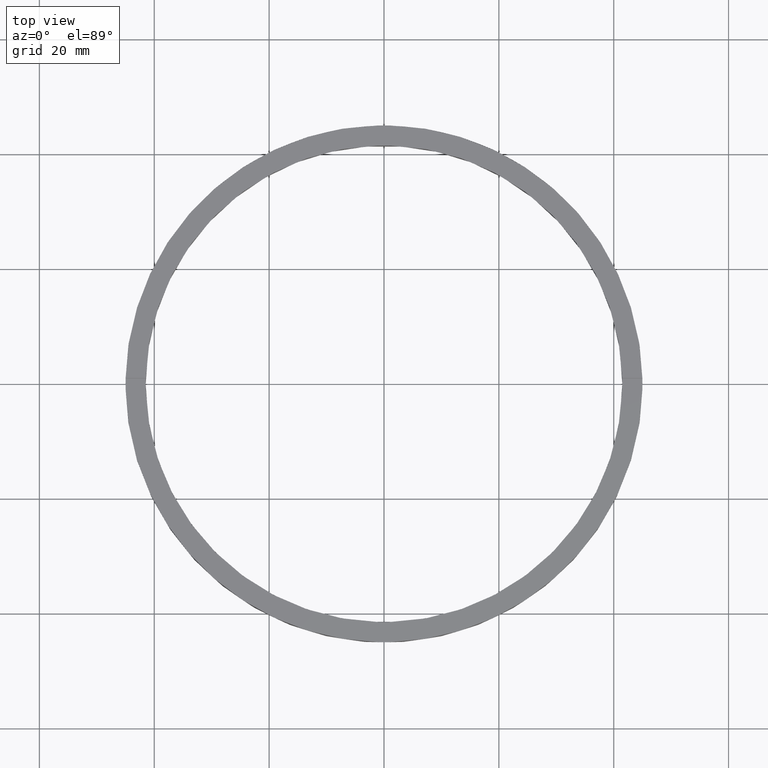
[diagram: clean part render]
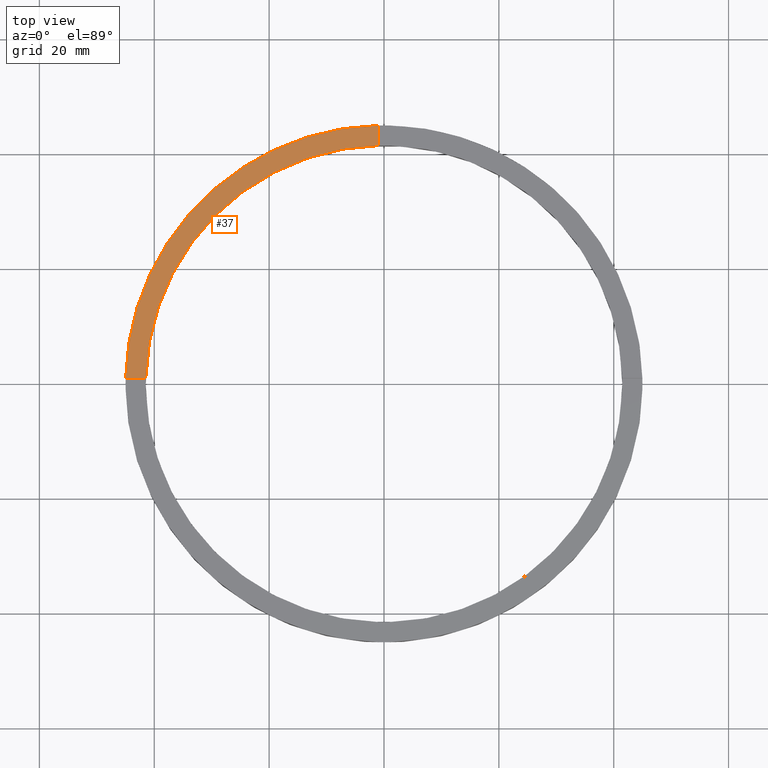
[diagram: same view with one face highlighted and labeled with its STEP entity id]
A machine part, top view. The second image highlights one B-rep face of the part: STEP entity #37.
In plain terms, the highlighted planar face has unit normal (0, 0, 1).
Its self-contained STEP definition (entity closure, byte-faithful):
#4 = VECTOR ( 'NONE', #169, 1000.000000000000000 ) ;
#21 = CARTESIAN_POINT ( 'NONE',  ( 0.000000000000000000, 0.000000000000000000, 4.500000000000000000 ) ) ;
#31 = AXIS2_PLACEMENT_3D ( 'NONE', #399, #744, #630 ) ;
#37 = ADVANCED_FACE ( 'NONE', ( #113 ), #605, .T. ) ;
#47 = CARTESIAN_POINT ( 'NONE',  ( -44.98888751680797071, 0.9999999999999703570, 4.500000000000000000 ) ) ;
#70 = DIRECTION ( 'NONE',  ( 0.000000000000000000, 0.000000000000000000, 1.000000000000000000 ) ) ;
#88 = AXIS2_PLACEMENT_3D ( 'NONE', #21, #70, #571 ) ;
#112 = LINE ( 'NONE', #468, #646 ) ;
#113 = FACE_OUTER_BOUND ( 'NONE', #731, .T. ) ;
#144 = CARTESIAN_POINT ( 'NONE',  ( -1.000000000000026201, 41.48795005781799716, 4.500000000000000000 ) ) ;
#155 = DIRECTION ( 'NONE',  ( -0.000000000000000000, -1.000000000000000000, -0.000000000000000000 ) ) ;
#164 = CARTESIAN_POINT ( 'NONE',  ( -41.48795005781799716, 0.9999999999999709122, 4.500000000000000000 ) ) ;
#169 = DIRECTION ( 'NONE',  ( -1.000000000000000000, -1.951563910473907735E-16, 0.000000000000000000 ) ) ;
#182 = EDGE_CURVE ( 'NONE', #438, #238, #112, .T. ) ;
#201 = CIRCLE ( 'NONE', #339, 45.00000000000000711 ) ;
#222 = VERTEX_POINT ( 'NONE', #47 ) ;
#238 = VERTEX_POINT ( 'NONE', #144 ) ;
#254 = DIRECTION ( 'NONE',  ( 0.000000000000000000, 0.000000000000000000, 1.000000000000000000 ) ) ;
#258 = LINE ( 'NONE', #268, #4 ) ;
#268 = CARTESIAN_POINT ( 'NONE',  ( -35.00000000000019185, 0.9999999999999720224, 4.500000000000000000 ) ) ;
#270 = CIRCLE ( 'NONE', #31, 41.50000000000000000 ) ;
#297 = CARTESIAN_POINT ( 'NONE',  ( -1.000000000000026201, 44.98888751680797071, 4.500000000000000000 ) ) ;
#313 = DIRECTION ( 'NONE',  ( 1.000000000000000000, 0.000000000000000000, 0.000000000000000000 ) ) ;
#332 = EDGE_CURVE ( 'NONE', #438, #222, #201, .T. ) ;
#339 = AXIS2_PLACEMENT_3D ( 'NONE', #553, #254, #313 ) ;
#399 = CARTESIAN_POINT ( 'NONE',  ( 0.000000000000000000, 0.000000000000000000, 4.500000000000000000 ) ) ;
#438 = VERTEX_POINT ( 'NONE', #297 ) ;
#440 = EDGE_CURVE ( 'NONE', #238, #671, #270, .T. ) ;
#442 = ORIENTED_EDGE ( 'NONE', *, *, #569, .F. ) ;
#468 = CARTESIAN_POINT ( 'NONE',  ( -1.000000000000026201, 35.00000000000000000, 4.500000000000000000 ) ) ;
#505 = ORIENTED_EDGE ( 'NONE', *, *, #440, .F. ) ;
#553 = CARTESIAN_POINT ( 'NONE',  ( 0.000000000000000000, 0.000000000000000000, 4.500000000000000000 ) ) ;
#569 = EDGE_CURVE ( 'NONE', #671, #222, #258, .T. ) ;
#571 = DIRECTION ( 'NONE',  ( 1.000000000000000000, 0.000000000000000000, -0.000000000000000000 ) ) ;
#605 = PLANE ( 'NONE',  #88 ) ;
#630 = DIRECTION ( 'NONE',  ( 1.000000000000000000, 0.000000000000000000, 0.000000000000000000 ) ) ;
#646 = VECTOR ( 'NONE', #155, 1000.000000000000000 ) ;
#671 = VERTEX_POINT ( 'NONE', #164 ) ;
#731 = EDGE_LOOP ( 'NONE', ( #754, #736, #442, #505 ) ) ;
#736 = ORIENTED_EDGE ( 'NONE', *, *, #332, .T. ) ;
#744 = DIRECTION ( 'NONE',  ( 0.000000000000000000, 0.000000000000000000, 1.000000000000000000 ) ) ;
#754 = ORIENTED_EDGE ( 'NONE', *, *, #182, .F. ) ;